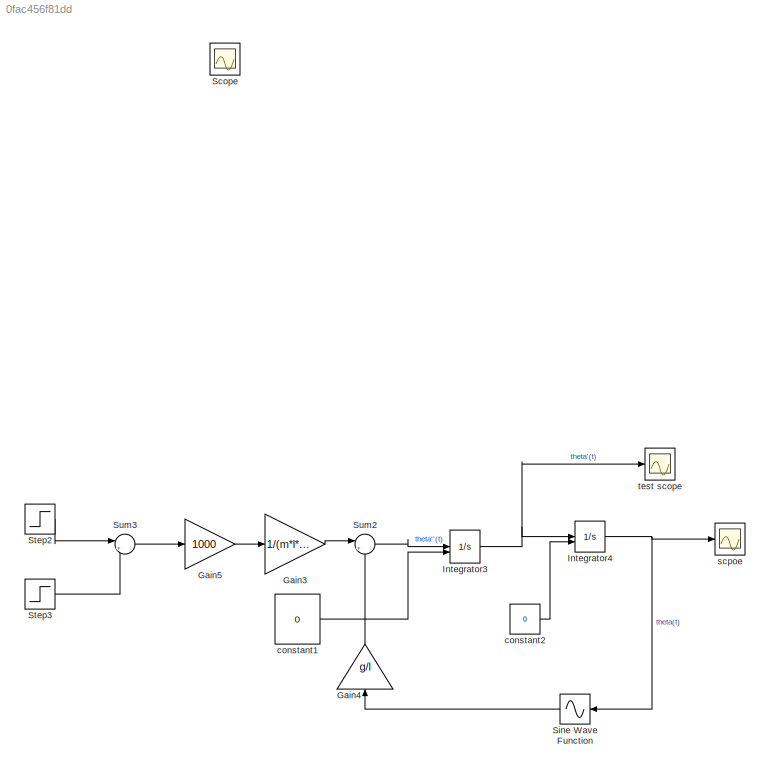
MODEL slx_0fac456f81dd
KIND model
CONFIG AbsTol = auto
CONFIG EnableMultiTasking = off
CONFIG FixedStep = auto
CONFIG MaxStep = auto
CONFIG MinStep = auto
CONFIG RelTol = 1e-3
CONFIG SampleTimeConstraint = Unconstrained
CONFIG SolverName = VariableStepAuto
CONFIG StartTime = 0.0
CONFIG StopTime = 10.0
WORKSPACE source: mxarray member
WORKSPACE g = 9.8
WORKSPACE l = 0.8
WORKSPACE m = 2
BLOCK [Gain] Gain3
  Gain = 1/(m*l*l)
BLOCK [Gain] Gain4
  Gain = g/l
  NameLocation = right
BLOCK [Gain] Gain5
  Gain = 1000
BLOCK [Integrator] Integrator3
  InitialCondition = 1/(m*l*l)
  InitialConditionSource = external
BLOCK [Integrator] Integrator4
  InitialConditionSource = external
BLOCK [Scope] Scope
  Floating = off
  IOType = viewer
  NumInputPorts = 1
  ScopeSpecificationString = Simulink.scopes.TimeScopeBlockCfg('CurrentConfiguration', extmgr.ConfigurationSet(extmgr.Configuration('Core','General UI',true),extmgr.Configuration('Core','Source UI',true),extmgr.Configuration('Sources','WiredSimulink',true),extmgr.Configuration('Visuals','Time Domain',true,'SerializedDisplays',{struct('MinYLimReal','0.74567','MaxYLimReal','0.77953','YLabelReal','','MinYLimMag','0.74567','MaxYL...<+1375ch>
BLOCK [Sin] Sine Wave Function
  Frequency = 1/(2*pi)
  NameLocation = top
  SampleTime = 0
  TimeSource = Use external signal
BLOCK [Step] Step2
  SampleTime = 0
  Time = 0
BLOCK [Step] Step3
  SampleTime = 0
  Time = 0.001
BLOCK [Sum] Sum2
  Inputs = |+-
BLOCK [Sum] Sum3
  Inputs = |+-
BLOCK [Constant] constant1
  Value = 0
BLOCK [Constant] constant2
  Value = 0
BLOCK [Scope] scpoe
  Floating = off
  NumInputPorts = 1
  ScopeSpecificationString = Simulink.scopes.TimeScopeBlockCfg('CurrentConfiguration', extmgr.ConfigurationSet(extmgr.Configuration('Core','General UI',true,'FigureColor',[1 1 1]),extmgr.Configuration('Core','Source UI',true),extmgr.Configuration('Sources','WiredSimulink',true,'DataLoggingVariableName','ScopeData2'),extmgr.Configuration('Visuals','Time Domain',true,'SerializedDisplays',{struct('MinYLimReal','-0.69905','MaxYLi...<+1549ch>
BLOCK [Scope] test scope
  Commented = on
  Floating = off
  NumInputPorts = 1
  ScopeSpecificationString = Simulink.scopes.TimeScopeBlockCfg('CurrentConfiguration', extmgr.ConfigurationSet(extmgr.Configuration('Core','General UI',true),extmgr.Configuration('Core','Source UI',true),extmgr.Configuration('Sources','WiredSimulink',true,'DataLoggingVariableName','ScopeData1'),extmgr.Configuration('Visuals','Time Domain',true,'SerializedDisplays',{struct('MinYLimReal','-0.97484','MaxYLimReal','0.97637','YLab...<+1398ch>
LINE Gain3:1 -> Sum2:1
LINE Gain4:1 -> Sum2:2
LINE Gain5:1 -> Gain3:1
NET Integrator3:1 -> Integrator4:1, test scope:1
NET Integrator4:1 -> Sine Wave Function:1, scpoe:1
LINE Sine Wave Function:1 -> Gain4:1
LINE Step2:1 -> Sum3:1
LINE Step3:1 -> Sum3:2
LINE Sum2:1 -> Integrator3:1
LINE Sum3:1 -> Gain5:1
LINE constant1:1 -> Integrator3:2
LINE constant2:1 -> Integrator4:2
note: NET lines group one-source signal fan-out (src -> all destinations, sorted); 1:1 wires keep LINE
